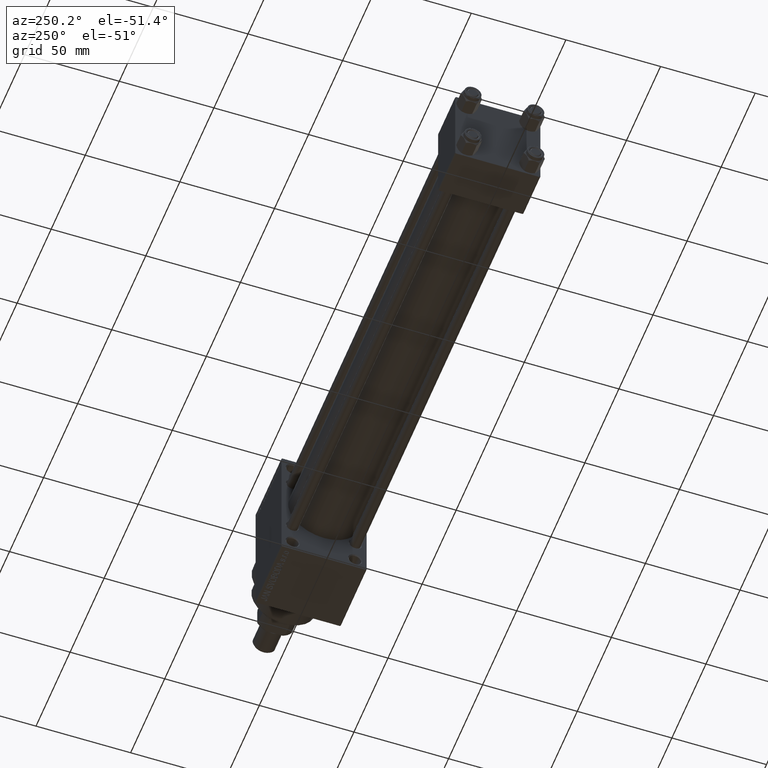
[diagram: clean part render]
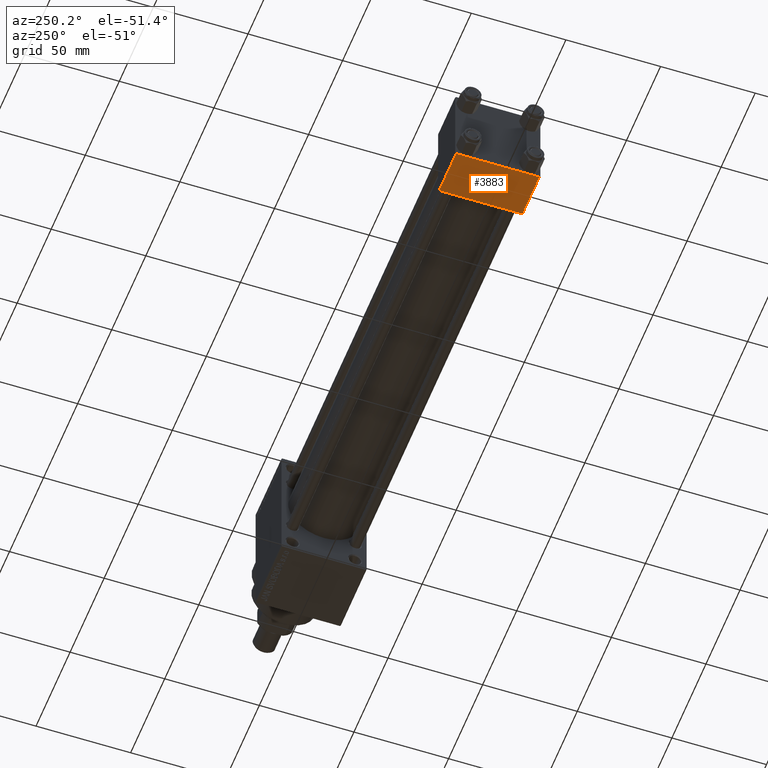
[diagram: same view with one face highlighted and labeled with its STEP entity id]
A machine part, auxiliary view. The second image highlights one B-rep face of the part: STEP entity #3883.
In plain terms, the highlighted planar face has unit normal (0, 0, -1).
Its self-contained STEP definition (entity closure, byte-faithful):
#902 = ORIENTED_EDGE ( 'NONE', *, *, #27107, .T. ) ;
#2321 = DIRECTION ( 'NONE',  ( 1.000000000000000000, 0.000000000000000000, 0.000000000000000000 ) ) ;
#3140 = DIRECTION ( 'NONE',  ( 0.000000000000000000, 1.000000000000000000, 2.312964634635742957E-16 ) ) ;
#3609 = VERTEX_POINT ( 'NONE', #24134 ) ;
#3883 = ADVANCED_FACE ( 'NONE', ( #7460 ), #36339, .T. ) ;
#4373 = ORIENTED_EDGE ( 'NONE', *, *, #10866, .F. ) ;
#4751 = VERTEX_POINT ( 'NONE', #44907 ) ;
#6367 = VECTOR ( 'NONE', #2321, 1000.000000000000000 ) ;
#7460 = FACE_OUTER_BOUND ( 'NONE', #35835, .T. ) ;
#7480 = CARTESIAN_POINT ( 'NONE',  ( 0.000000000000000000, 21.99999999999999289, -22.49999999999999645 ) ) ;
#10866 = EDGE_CURVE ( 'NONE', #30506, #36223, #20402, .T. ) ;
#11704 = EDGE_CURVE ( 'NONE', #3609, #36223, #35092, .T. ) ;
#14845 = CARTESIAN_POINT ( 'NONE',  ( 0.000000000000000000, -21.99999999999997158, -22.50000000000000711 ) ) ;
#17769 = LINE ( 'NONE', #21857, #19153 ) ;
#19153 = VECTOR ( 'NONE', #32452, 1000.000000000000000 ) ;
#20402 = LINE ( 'NONE', #38237, #31199 ) ;
#21857 = CARTESIAN_POINT ( 'NONE',  ( 25.00000000000000000, 22.50000000000000000, -22.49999999999999645 ) ) ;
#23974 = ORIENTED_EDGE ( 'NONE', *, *, #40248, .T. ) ;
#24134 = CARTESIAN_POINT ( 'NONE',  ( 25.00000000000000000, -21.99999999999997158, -22.50000000000000711 ) ) ;
#25496 = DIRECTION ( 'NONE',  ( 0.000000000000000000, 2.312964634635742957E-16, -1.000000000000000000 ) ) ;
#27107 = EDGE_CURVE ( 'NONE', #4751, #3609, #17769, .T. ) ;
#29648 = VECTOR ( 'NONE', #46401, 1000.000000000000000 ) ;
#30506 = VERTEX_POINT ( 'NONE', #7480 ) ;
#31199 = VECTOR ( 'NONE', #42072, 1000.000000000000000 ) ;
#32222 = ORIENTED_EDGE ( 'NONE', *, *, #11704, .T. ) ;
#32452 = DIRECTION ( 'NONE',  ( 0.000000000000000000, -1.000000000000000000, -2.312964634635742957E-16 ) ) ;
#35092 = LINE ( 'NONE', #38946, #29648 ) ;
#35520 = CARTESIAN_POINT ( 'NONE',  ( 25.00000000000000000, 21.99999999999999289, -22.49999999999999645 ) ) ;
#35835 = EDGE_LOOP ( 'NONE', ( #4373, #23974, #902, #32222 ) ) ;
#36223 = VERTEX_POINT ( 'NONE', #14845 ) ;
#36339 = PLANE ( 'NONE',  #44112 ) ;
#38237 = CARTESIAN_POINT ( 'NONE',  ( 0.000000000000000000, 22.50000000000000000, -22.49999999999999645 ) ) ;
#38946 = CARTESIAN_POINT ( 'NONE',  ( 0.000000000000000000, -21.99999999999998579, -22.50000000000000711 ) ) ;
#39718 = CARTESIAN_POINT ( 'NONE',  ( 25.00000000000000000, 22.50000000000000000, -22.49999999999999645 ) ) ;
#40248 = EDGE_CURVE ( 'NONE', #30506, #4751, #42741, .T. ) ;
#42072 = DIRECTION ( 'NONE',  ( 0.000000000000000000, -1.000000000000000000, -2.312964634635742957E-16 ) ) ;
#42741 = LINE ( 'NONE', #35520, #6367 ) ;
#44112 = AXIS2_PLACEMENT_3D ( 'NONE', #39718, #25496, #3140 ) ;
#44907 = CARTESIAN_POINT ( 'NONE',  ( 25.00000000000000000, 21.99999999999999289, -22.49999999999999645 ) ) ;
#46401 = DIRECTION ( 'NONE',  ( -1.000000000000000000, 0.000000000000000000, 0.000000000000000000 ) ) ;